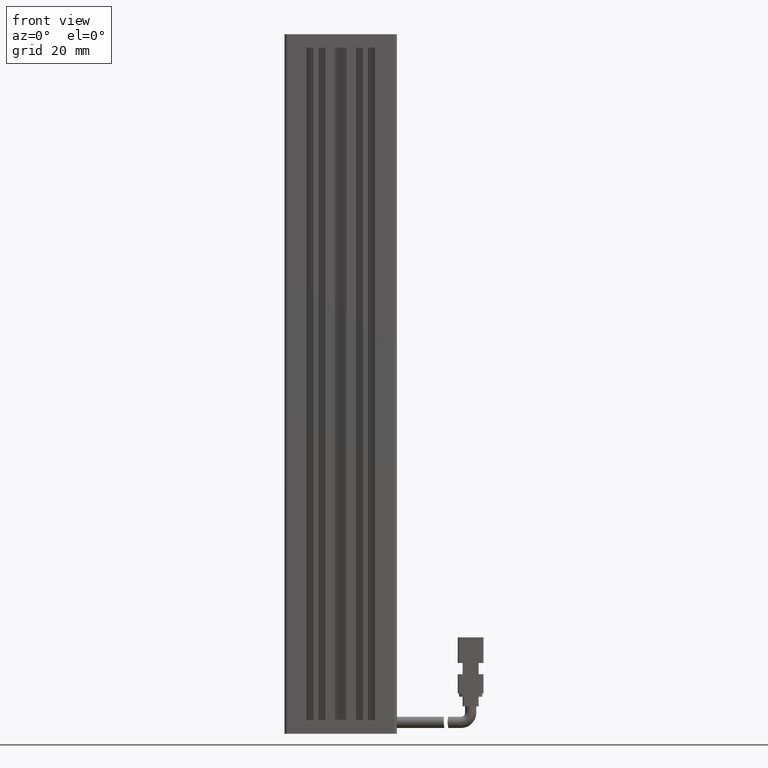
[diagram: clean part render]
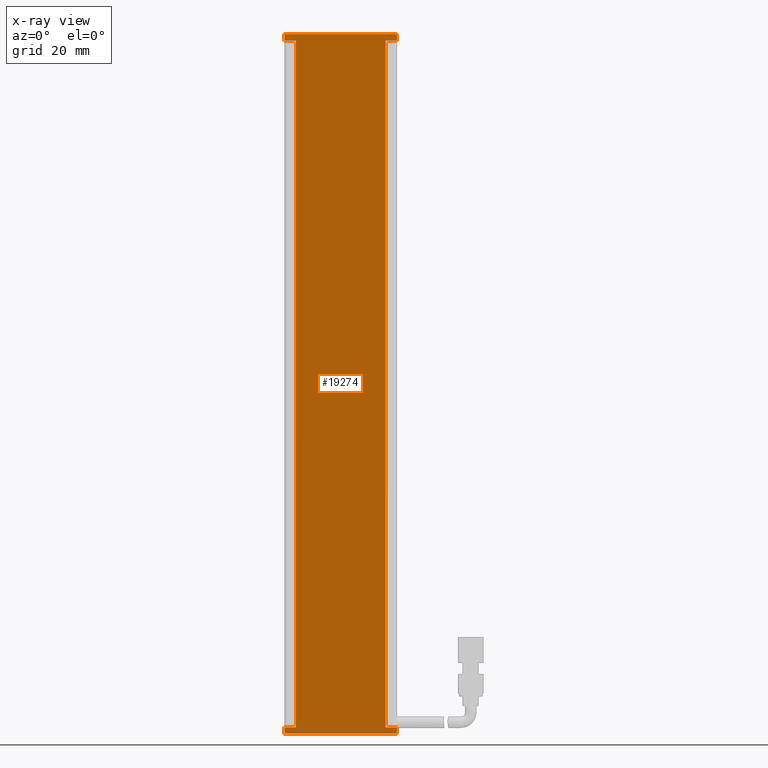
[diagram: x-ray — body ghosted, one internal face saturated and labeled with its STEP entity id]
A machine part, front view, then the same camera in x-ray: the body is ghosted and one INTERNAL B-rep face — a face not visible from any outside direction — is saturated and labeled: STEP entity #19274.
In plain terms, the highlighted planar face has unit normal (0, -1, 0).
Its self-contained STEP definition (entity closure, byte-faithful):
#231 = EDGE_CURVE ( 'NONE', #62631, #2339, #75032, .T. ) ;
#1135 = CARTESIAN_POINT ( 'NONE',  ( 40.92537974683542500, 19.49073232304837000, -222.0000000000000000 ) ) ;
#1870 = PLANE ( 'NONE',  #40694 ) ;
#2339 = VERTEX_POINT ( 'NONE', #23991 ) ;
#2530 = ORIENTED_EDGE ( 'NONE', *, *, #7078, .F. ) ;
#2698 = CARTESIAN_POINT ( 'NONE',  ( 40.92537974683542500, 19.49073232304837000, -6.000000000000005300 ) ) ;
#3262 = ORIENTED_EDGE ( 'NONE', *, *, #77075, .F. ) ;
#3758 = VECTOR ( 'NONE', #66358, 1000.000000000000000 ) ;
#4250 = VECTOR ( 'NONE', #82570, 1000.000000000000000 ) ;
#5744 = EDGE_CURVE ( 'NONE', #84849, #79828, #32259, .T. ) ;
#5799 = ORIENTED_EDGE ( 'NONE', *, *, #45579, .F. ) ;
#7055 = VERTEX_POINT ( 'NONE', #13073 ) ;
#7078 = EDGE_CURVE ( 'NONE', #2339, #8183, #8895, .T. ) ;
#8183 = VERTEX_POINT ( 'NONE', #21082 ) ;
#8895 = LINE ( 'NONE', #40605, #46152 ) ;
#12138 = ORIENTED_EDGE ( 'NONE', *, *, #13297, .F. ) ;
#12918 = CARTESIAN_POINT ( 'NONE',  ( 26.92537974683542100, 19.49073232304836600, -222.0000000000000000 ) ) ;
#13073 = CARTESIAN_POINT ( 'NONE',  ( 54.92537974683542500, 19.49073232304837000, -8.000000000000007100 ) ) ;
#13297 = EDGE_CURVE ( 'NONE', #42783, #7055, #16333, .T. ) ;
#13362 = DIRECTION ( 'NONE',  ( 0.0000000000000000000, -0.0000000000000000000, -1.000000000000000000 ) ) ;
#13412 = LINE ( 'NONE', #39236, #33072 ) ;
#14373 = CARTESIAN_POINT ( 'NONE',  ( 58.42537974683542500, 19.49073232304837000, -6.000000000000005300 ) ) ;
#15915 = VERTEX_POINT ( 'NONE', #35226 ) ;
#15978 = ORIENTED_EDGE ( 'NONE', *, *, #51006, .F. ) ;
#16333 = LINE ( 'NONE', #17794, #59122 ) ;
#17114 = EDGE_CURVE ( 'NONE', #79828, #40280, #55243, .T. ) ;
#17794 = CARTESIAN_POINT ( 'NONE',  ( 54.92537974683542500, 19.49073232304837000, -6.000000000000005300 ) ) ;
#18077 = ORIENTED_EDGE ( 'NONE', *, *, #31668, .F. ) ;
#19274 = ADVANCED_FACE ( 'NONE', ( #76450 ), #1870, .F. ) ;
#19690 = EDGE_LOOP ( 'NONE', ( #3262, #15978, #69798, #25229, #32628, #12138, #45737, #5799, #20777, #2530, #43559, #18077 ) ) ;
#20777 = ORIENTED_EDGE ( 'NONE', *, *, #45734, .F. ) ;
#21082 = CARTESIAN_POINT ( 'NONE',  ( 23.42537974683542100, 19.49073232304836600, -224.0000000000000000 ) ) ;
#23991 = CARTESIAN_POINT ( 'NONE',  ( 23.42537974683542100, 19.49073232304836600, -222.0000000000000000 ) ) ;
#25229 = ORIENTED_EDGE ( 'NONE', *, *, #5744, .F. ) ;
#26907 = LINE ( 'NONE', #58095, #69637 ) ;
#30983 = CARTESIAN_POINT ( 'NONE',  ( 58.42537974683542500, 19.49073232304837000, -8.000000000000007100 ) ) ;
#31668 = EDGE_CURVE ( 'NONE', #45872, #62631, #39144, .T. ) ;
#32259 = LINE ( 'NONE', #14373, #43266 ) ;
#32628 = ORIENTED_EDGE ( 'NONE', *, *, #85965, .F. ) ;
#33072 = VECTOR ( 'NONE', #60396, 1000.000000000000000 ) ;
#35153 = DIRECTION ( 'NONE',  ( -0.0000000000000000000, 0.0000000000000000000, 1.000000000000000000 ) ) ;
#35226 = CARTESIAN_POINT ( 'NONE',  ( 23.42537974683542100, 19.49073232304836600, -8.000000000000007100 ) ) ;
#35627 = VECTOR ( 'NONE', #36257, 1000.000000000000000 ) ;
#36189 = LINE ( 'NONE', #51392, #38395 ) ;
#36257 = DIRECTION ( 'NONE',  ( -1.000000000000000000, -1.239088197126290600E-016, -0.0000000000000000000 ) ) ;
#38166 = DIRECTION ( 'NONE',  ( -1.000000000000000000, -1.239088197126290600E-016, -0.0000000000000000000 ) ) ;
#38395 = VECTOR ( 'NONE', #38166, 1000.000000000000000 ) ;
#39144 = LINE ( 'NONE', #89534, #46862 ) ;
#39236 = CARTESIAN_POINT ( 'NONE',  ( 40.92537974683542500, 19.49073232304837000, -8.000000000000007100 ) ) ;
#39614 = CARTESIAN_POINT ( 'NONE',  ( 26.92537974683542100, 19.49073232304836600, -8.000000000000007100 ) ) ;
#40280 = VERTEX_POINT ( 'NONE', #51723 ) ;
#40605 = CARTESIAN_POINT ( 'NONE',  ( 23.42537974683542500, 19.49073232304836600, -6.000000000000005300 ) ) ;
#40694 = AXIS2_PLACEMENT_3D ( 'NONE', #50832, #79455, #65491 ) ;
#41579 = CARTESIAN_POINT ( 'NONE',  ( 58.42537974683542500, 19.49073232304837000, -221.9999999999999700 ) ) ;
#42783 = VERTEX_POINT ( 'NONE', #83354 ) ;
#43266 = VECTOR ( 'NONE', #35153, 1000.000000000000000 ) ;
#43559 = ORIENTED_EDGE ( 'NONE', *, *, #231, .F. ) ;
#45579 = EDGE_CURVE ( 'NONE', #71187, #81566, #26907, .T. ) ;
#45734 = EDGE_CURVE ( 'NONE', #8183, #71187, #81699, .T. ) ;
#45737 = ORIENTED_EDGE ( 'NONE', *, *, #52308, .F. ) ;
#45872 = VERTEX_POINT ( 'NONE', #39614 ) ;
#46152 = VECTOR ( 'NONE', #13362, 1000.000000000000000 ) ;
#46862 = VECTOR ( 'NONE', #62040, 1000.000000000000000 ) ;
#50222 = LINE ( 'NONE', #70505, #66589 ) ;
#50832 = CARTESIAN_POINT ( 'NONE',  ( 40.92537974683542500, 19.49073232304837000, -6.000000000000005300 ) ) ;
#51006 = EDGE_CURVE ( 'NONE', #40280, #15915, #71019, .T. ) ;
#51196 = VECTOR ( 'NONE', #75086, 1000.000000000000000 ) ;
#51392 = CARTESIAN_POINT ( 'NONE',  ( 40.92537974683542500, 19.49073232304837000, -222.0000000000000000 ) ) ;
#51723 = CARTESIAN_POINT ( 'NONE',  ( 23.42537974683542100, 19.49073232304836600, -6.000000000000005300 ) ) ;
#52260 = CARTESIAN_POINT ( 'NONE',  ( 40.92537974683542500, 19.49073232304837000, -224.0000000000000000 ) ) ;
#52308 = EDGE_CURVE ( 'NONE', #81566, #42783, #36189, .T. ) ;
#52766 = DIRECTION ( 'NONE',  ( -0.0000000000000000000, 0.0000000000000000000, 1.000000000000000000 ) ) ;
#53939 = CARTESIAN_POINT ( 'NONE',  ( 23.42537974683542100, 19.49073232304836600, -6.000000000000005300 ) ) ;
#55243 = LINE ( 'NONE', #2698, #3758 ) ;
#55854 = CARTESIAN_POINT ( 'NONE',  ( 58.42537974683542500, 19.49073232304837000, -224.0000000000000000 ) ) ;
#57501 = DIRECTION ( 'NONE',  ( -0.0000000000000000000, 0.0000000000000000000, 1.000000000000000000 ) ) ;
#58095 = CARTESIAN_POINT ( 'NONE',  ( 58.42537974683542500, 19.49073232304837000, -6.000000000000005300 ) ) ;
#59122 = VECTOR ( 'NONE', #52766, 1000.000000000000000 ) ;
#60396 = DIRECTION ( 'NONE',  ( 1.000000000000000000, 1.239088197126290600E-016, 0.0000000000000000000 ) ) ;
#62040 = DIRECTION ( 'NONE',  ( 0.0000000000000000000, -0.0000000000000000000, -1.000000000000000000 ) ) ;
#62631 = VERTEX_POINT ( 'NONE', #12918 ) ;
#65491 = DIRECTION ( 'NONE',  ( 1.000000000000000000, 1.239088197126290600E-016, 0.0000000000000000000 ) ) ;
#66358 = DIRECTION ( 'NONE',  ( -1.000000000000000000, -1.239088197126290600E-016, -0.0000000000000000000 ) ) ;
#66589 = VECTOR ( 'NONE', #72936, 1000.000000000000000 ) ;
#69637 = VECTOR ( 'NONE', #57501, 1000.000000000000000 ) ;
#69798 = ORIENTED_EDGE ( 'NONE', *, *, #17114, .F. ) ;
#70505 = CARTESIAN_POINT ( 'NONE',  ( 40.92537974683542500, 19.49073232304837000, -8.000000000000007100 ) ) ;
#71019 = LINE ( 'NONE', #53939, #4250 ) ;
#71105 = CARTESIAN_POINT ( 'NONE',  ( 58.42537974683542500, 19.49073232304837000, -6.000000000000005300 ) ) ;
#71187 = VERTEX_POINT ( 'NONE', #55854 ) ;
#72936 = DIRECTION ( 'NONE',  ( 1.000000000000000000, 1.239088197126290600E-016, 0.0000000000000000000 ) ) ;
#75032 = LINE ( 'NONE', #1135, #35627 ) ;
#75086 = DIRECTION ( 'NONE',  ( 1.000000000000000000, 1.239088197126290600E-016, 0.0000000000000000000 ) ) ;
#76450 = FACE_OUTER_BOUND ( 'NONE', #19690, .T. ) ;
#77075 = EDGE_CURVE ( 'NONE', #15915, #45872, #50222, .T. ) ;
#79455 = DIRECTION ( 'NONE',  ( 1.239088197126290600E-016, -1.000000000000000000, 0.0000000000000000000 ) ) ;
#79828 = VERTEX_POINT ( 'NONE', #71105 ) ;
#81566 = VERTEX_POINT ( 'NONE', #41579 ) ;
#81699 = LINE ( 'NONE', #52260, #51196 ) ;
#82570 = DIRECTION ( 'NONE',  ( 0.0000000000000000000, -0.0000000000000000000, -1.000000000000000000 ) ) ;
#83354 = CARTESIAN_POINT ( 'NONE',  ( 54.92537974683542500, 19.49073232304837000, -222.0000000000000000 ) ) ;
#84849 = VERTEX_POINT ( 'NONE', #30983 ) ;
#85965 = EDGE_CURVE ( 'NONE', #7055, #84849, #13412, .T. ) ;
#89534 = CARTESIAN_POINT ( 'NONE',  ( 26.92537974683542100, 19.49073232304836600, -6.000000000000005300 ) ) ;